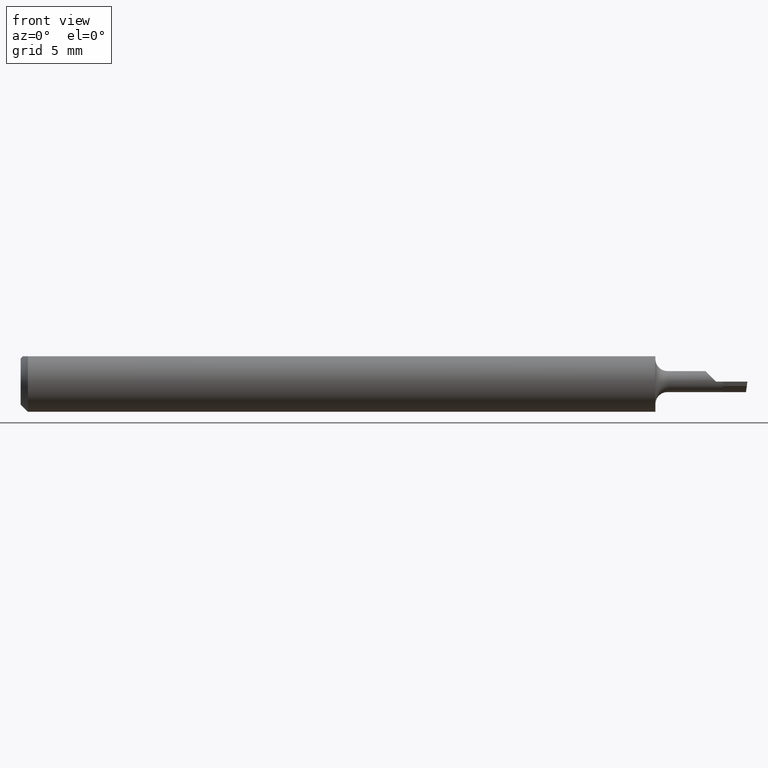
[diagram: clean part render]
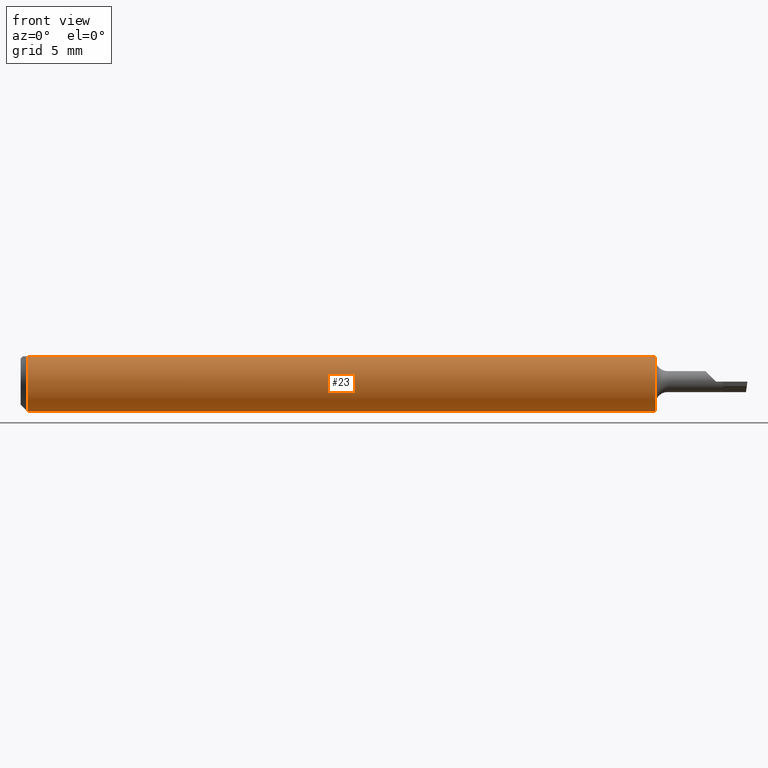
[diagram: same view with one face highlighted and labeled with its STEP entity id]
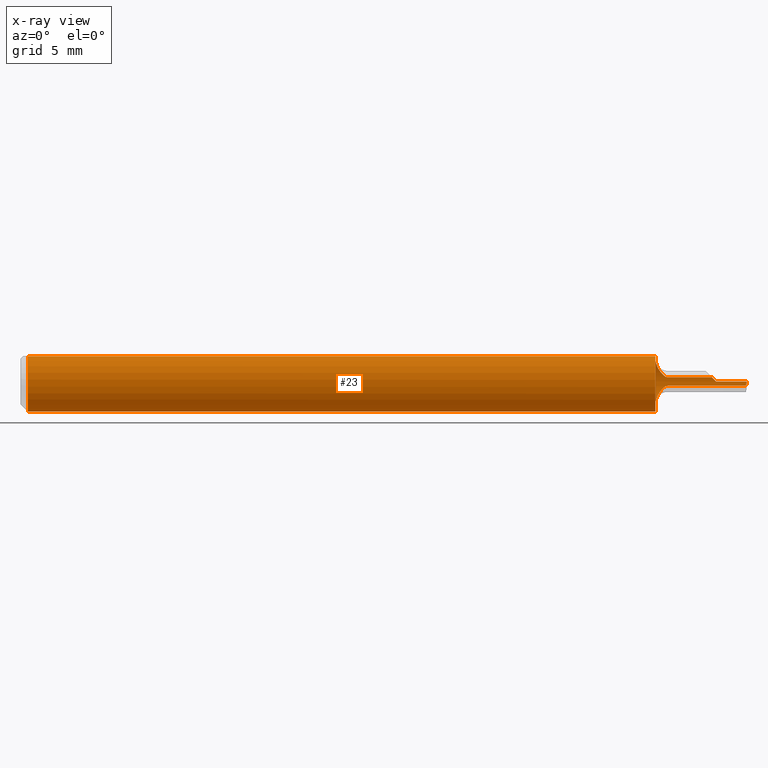
[diagram: x-ray of the same camera — body ghosted, the highlighted face saturated]
A machine part, front view. The second image highlights one B-rep face of the part: STEP entity #23.
The next image is the same camera in x-ray: the body ghosted, the highlighted face saturated — about 0% of this face is hidden behind the body in this view.
In plain terms, the highlighted cylindrical surface (edge-blend (fillet) strip) has radius 1.5837 mm, axis along (-1, -0, -0).
Its self-contained STEP definition (entity closure, byte-faithful):
#1 = CIRCLE ( 'NONE', #220, 0.06235000000000000264 ) ;
#5 = CARTESIAN_POINT ( 'NONE',  ( 1.428995348212944494, 0.06213295572546700951, 0.006004651787055668641 ) ) ;
#11 = CARTESIAN_POINT ( 'NONE',  ( 1.310074194741583486, 0.04526839251566672911, -0.04310279966243768524 ) ) ;
#16 = CARTESIAN_POINT ( 'NONE',  ( 1.321164219611749013, 0.05951808255707899398, -0.01885829980402606298 ) ) ;
#17 = CARTESIAN_POINT ( 'NONE',  ( 1.318668118509243703, 0.05835572319906699723, 0.02229702727151929020 ) ) ;
#20 = CARTESIAN_POINT ( 'NONE',  ( 1.392500000000000071, 0.06169999999999997708, -0.008979560122856901014 ) ) ;
#22 = CYLINDRICAL_SURFACE ( 'NONE', #200, 0.06235000000000000264 ) ;
#23 = ADVANCED_FACE ( 'NONE', ( #72 ), #22, .T. ) ;
#25 = CARTESIAN_POINT ( 'NONE',  ( 1.312870761441107037, 0.05308346109616995934, -0.03297691048371721029 ) ) ;
#33 = CARTESIAN_POINT ( 'NONE',  ( 1.981042333644269815E-32, 0.06234999999999999570, 1.723822351771319809E-16 ) ) ;
#34 = DIRECTION ( 'NONE',  ( 1.000000000000000000, 0.000000000000000000, 0.000000000000000000 ) ) ;
#46 = DIRECTION ( 'NONE',  ( -1.000000000000000000, -0.000000000000000000, -0.000000000000000000 ) ) ;
#49 = EDGE_CURVE ( 'NONE', #519, #386, #185, .T. ) ;
#54 = AXIS2_PLACEMENT_3D ( 'NONE', #169, #60, #375 ) ;
#60 = DIRECTION ( 'NONE',  ( -1.000000000000000000, -0.000000000000000000, -0.000000000000000000 ) ) ;
#62 = CARTESIAN_POINT ( 'NONE',  ( 1.310141552243445640, 0.04851859531340434878, 0.04014048412325041393 ) ) ;
#68 = EDGE_CURVE ( 'NONE', #163, #537, #308, .T. ) ;
#69 = CARTESIAN_POINT ( 'NONE',  ( 1.321137345355671844, 0.05951103980767496332, 0.01888626235242490611 ) ) ;
#72 = FACE_OUTER_BOUND ( 'NONE', #454, .T. ) ;
#79 = DIRECTION ( 'NONE',  ( -1.000000000000000000, -0.000000000000000000, -0.000000000000000000 ) ) ;
#81 = EDGE_CURVE ( 'NONE', #250, #493, #1, .T. ) ;
#100 = VECTOR ( 'NONE', #46, 39.37007874015748143 ) ;
#101 = CARTESIAN_POINT ( 'NONE',  ( 1.310000000000000053, -0.03386738844380023788, 0.05235000000000000070 ) ) ;
#104 = ORIENTED_EDGE ( 'NONE', *, *, #178, .T. ) ;
#117 = VERTEX_POINT ( 'NONE', #309 ) ;
#121 = CARTESIAN_POINT ( 'NONE',  ( 1.310000000000000053, 0.000000000000000000, 0.000000000000000000 ) ) ;
#125 = ORIENTED_EDGE ( 'NONE', *, *, #507, .T. ) ;
#130 = CARTESIAN_POINT ( 'NONE',  ( 1.392500000000000071, 0.06169999999999997708, 0.008979560122856901014 ) ) ;
#135 = DIRECTION ( 'NONE',  ( -1.000000000000000000, -0.000000000000000000, -0.000000000000000000 ) ) ;
#149 = CARTESIAN_POINT ( 'NONE',  ( 0.01500000000000000465, 0.03386738844375223462, 0.05234999999999997988 ) ) ;
#162 = CARTESIAN_POINT ( 'NONE',  ( 1.310006460274302675, 0.04200000000015002843, -0.04608169376213723523 ) ) ;
#163 = VERTEX_POINT ( 'NONE', #679 ) ;
#169 = CARTESIAN_POINT ( 'NONE',  ( 0.01500000000000000465, 0.000000000000000000, 0.000000000000000000 ) ) ;
#170 = CARTESIAN_POINT ( 'NONE',  ( 1.314503367413919488, 0.05514048125192552718, -0.02935827858479103658 ) ) ;
#171 = CARTESIAN_POINT ( 'NONE',  ( 1.330731329014794184, 0.06154711322920821542, 0.01005805410694270499 ) ) ;
#178 = EDGE_CURVE ( 'NONE', #684, #117, #615, .T. ) ;
#179 = CARTESIAN_POINT ( 'NONE',  ( 1.309999999999991172, 0.04158309226468338143, -0.04645910121876678511 ) ) ;
#180 = CIRCLE ( 'NONE', #620, 0.06235000000000000264 ) ;
#182 = DIRECTION ( 'NONE',  ( 1.000000000000000000, 0.000000000000000000, 0.000000000000000000 ) ) ;
#185 =( BOUNDED_CURVE ( )  B_SPLINE_CURVE ( 3, ( #659, #544, #186, #394 ),
 .UNSPECIFIED., .F., .T. ) 
 B_SPLINE_CURVE_WITH_KNOTS ( ( 4, 4 ),
 ( 5.009623706381322705, 5.154144874936619658 ),
 .UNSPECIFIED. ) 
 CURVE ( )  GEOMETRIC_REPRESENTATION_ITEM ( )  RATIONAL_B_SPLINE_CURVE ( ( 1.000000000000000000, 0.9982602265499040950, 0.9982602265499040950, 1.000000000000000000 ) ) 
 REPRESENTATION_ITEM ( '' )  );
#186 = CARTESIAN_POINT ( 'NONE',  ( 1.497630533948310916, 0.06213295572546700257, -0.006004651787055691192 ) ) ;
#187 = DIRECTION ( 'NONE',  ( 0.000000000000000000, 0.000000000000000000, 1.000000000000000000 ) ) ;
#200 = AXIS2_PLACEMENT_3D ( 'NONE', #285, #79, #231 ) ;
#203 = CARTESIAN_POINT ( 'NONE',  ( 1.310000000000000053, 0.04137261904761901921, 0.04664578108618818580 ) ) ;
#214 = EDGE_CURVE ( 'NONE', #493, #163, #273, .T. ) ;
#217 = CARTESIAN_POINT ( 'NONE',  ( 1.435000000000000053, 0.06234999999999984999, 7.469896857675718968E-18 ) ) ;
#220 = AXIS2_PLACEMENT_3D ( 'NONE', #121, #303, #345 ) ;
#224 = CARTESIAN_POINT ( 'NONE',  ( 1.325584872132278935, 0.06074967455721212717, 0.01413090964346032201 ) ) ;
#228 = CARTESIAN_POINT ( 'NONE',  ( 1.310670077248454524, 0.04815584287052730034, -0.03982895007941800181 ) ) ;
#229 = ORIENTED_EDGE ( 'NONE', *, *, #288, .T. ) ;
#231 = DIRECTION ( 'NONE',  ( 0.000000000000000000, 0.000000000000000000, 1.000000000000000000 ) ) ;
#236 = EDGE_CURVE ( 'NONE', #371, #250, #292, .T. ) ;
#237 = VERTEX_POINT ( 'NONE', #429 ) ;
#250 = VERTEX_POINT ( 'NONE', #270 ) ;
#270 = CARTESIAN_POINT ( 'NONE',  ( 1.310000000000000053, 0.03386738844375224156, 0.05235000000000000070 ) ) ;
#273 = B_SPLINE_CURVE_WITH_KNOTS ( 'NONE', 3,
 ( #203, #412, #348, #624 ),
 .UNSPECIFIED., .F., .F.,
 ( 4, 4 ),
 ( 4.582666268724743526E-07, 2.170104865268368278E-05 ),
 .UNSPECIFIED. ) ;
#274 = VERTEX_POINT ( 'NONE', #581 ) ;
#277 = CARTESIAN_POINT ( 'NONE',  ( 1.312421881751719255, 0.05353913003532599635, 0.03288138494637243836 ) ) ;
#278 = VECTOR ( 'NONE', #538, 39.37007874015748143 ) ;
#284 = CARTESIAN_POINT ( 'NONE',  ( 1.325565359643935626, 0.06074446073968786663, -0.01415138756931525257 ) ) ;
#285 = CARTESIAN_POINT ( 'NONE',  ( 0.000000000000000000, 0.000000000000000000, 0.000000000000000000 ) ) ;
#288 = EDGE_CURVE ( 'NONE', #386, #619, #482, .T. ) ;
#289 = CARTESIAN_POINT ( 'NONE',  ( 0.01500000000000000465, 0.000000000000000000, -0.06235000000000000264 ) ) ;
#292 = LINE ( 'NONE', #298, #522 ) ;
#294 = EDGE_CURVE ( 'NONE', #410, #117, #662, .T. ) ;
#298 = CARTESIAN_POINT ( 'NONE',  ( 0.000000000000000000, 0.03386738844375223462, 0.05234999999999997988 ) ) ;
#300 = VERTEX_POINT ( 'NONE', #217 ) ;
#302 = AXIS2_PLACEMENT_3D ( 'NONE', #451, #657, #187 ) ;
#303 = DIRECTION ( 'NONE',  ( -1.000000000000000000, -0.000000000000000000, -0.000000000000000000 ) ) ;
#308 = B_SPLINE_CURVE_WITH_KNOTS ( 'NONE', 3,
 ( #539, #62, #277, #17, #69, #224, #430, #171, #382, #594 ),
 .UNSPECIFIED., .F., .F.,
 ( 4, 2, 2, 2, 4 ),
 ( 2.170104865268368278E-05, 0.0006888475183558680215, 0.001022420753207455187, 0.001189207370633255708, 0.001355993988059056229 ),
 .UNSPECIFIED. ) ;
#309 = CARTESIAN_POINT ( 'NONE',  ( 0.01500000000000185039, -0.03386738844380016850, 0.05235000000000000070 ) ) ;
#316 = ORIENTED_EDGE ( 'NONE', *, *, #236, .T. ) ;
#317 = ORIENTED_EDGE ( 'NONE', *, *, #554, .T. ) ;
#320 = ORIENTED_EDGE ( 'NONE', *, *, #446, .F. ) ;
#327 =( BOUNDED_CURVE ( )  B_SPLINE_CURVE ( 3, ( #465, #5, #421, #635 ),
 .UNSPECIFIED., .F., .T. ) 
 B_SPLINE_CURVE_WITH_KNOTS ( ( 4, 4 ),
 ( 1.426275158239600271, 1.570796326794896558 ),
 .UNSPECIFIED. ) 
 CURVE ( )  GEOMETRIC_REPRESENTATION_ITEM ( )  RATIONAL_B_SPLINE_CURVE ( ( 1.000000000000000000, 0.9982602265499040950, 0.9982602265499040950, 1.000000000000000000 ) ) 
 REPRESENTATION_ITEM ( '' )  );
#328 = CARTESIAN_POINT ( 'NONE',  ( 1.327152351167834921, 0.06107065959994131127, -0.01263339011355613974 ) ) ;
#345 = DIRECTION ( 'NONE',  ( 0.000000000000000000, 0.000000000000000000, 1.000000000000000000 ) ) ;
#346 = DIRECTION ( 'NONE',  ( 0.000000000000000000, 0.000000000000000000, 1.000000000000000000 ) ) ;
#348 = CARTESIAN_POINT ( 'NONE',  ( 1.310002158776226500, 0.04179243973303146953, 0.04627086934374565613 ) ) ;
#370 = CARTESIAN_POINT ( 'NONE',  ( 1.318638811239069231, 0.05833681936465645590, -0.02234271023335333492 ) ) ;
#371 = VERTEX_POINT ( 'NONE', #149 ) ;
#375 = DIRECTION ( 'NONE',  ( 0.000000000000000000, 0.000000000000000000, 1.000000000000000000 ) ) ;
#382 = CARTESIAN_POINT ( 'NONE',  ( 1.332762534547911715, 0.06169999999999992851, 0.008979560122857352042 ) ) ;
#386 = VERTEX_POINT ( 'NONE', #524 ) ;
#388 = CARTESIAN_POINT ( 'NONE',  ( 1.498307515265092205, 0.06234999999999984999, 4.252919012001033187E-19 ) ) ;
#389 = EDGE_CURVE ( 'NONE', #274, #300, #327, .T. ) ;
#393 = CARTESIAN_POINT ( 'NONE',  ( 1.310006460274302675, 0.04200000000015002843, -0.04608169376213723523 ) ) ;
#394 = CARTESIAN_POINT ( 'NONE',  ( 1.497306498500703631, 0.06169999999999997708, -0.008979560122856901014 ) ) ;
#398 = CARTESIAN_POINT ( 'NONE',  ( 1.310002154187601242, 0.04179221831807067300, -0.04627107114684034933 ) ) ;
#402 = LINE ( 'NONE', #33, #627 ) ;
#410 = VERTEX_POINT ( 'NONE', #289 ) ;
#412 = CARTESIAN_POINT ( 'NONE',  ( 1.310000000000000053, 0.04158331714061498652, 0.04645890176435896191 ) ) ;
#416 = EDGE_CURVE ( 'NONE', #300, #519, #402, .T. ) ;
#420 = ORIENTED_EDGE ( 'NONE', *, *, #214, .T. ) ;
#421 = CARTESIAN_POINT ( 'NONE',  ( 1.431993751462930842, 0.06235000000000000958, 0.003006248537069724624 ) ) ;
#422 = ORIENTED_EDGE ( 'NONE', *, *, #68, .T. ) ;
#424 = CARTESIAN_POINT ( 'NONE',  ( 1.334999999999999742, 0.06169999999999989382, -0.008979560122857110915 ) ) ;
#426 = ORIENTED_EDGE ( 'NONE', *, *, #49, .T. ) ;
#429 = CARTESIAN_POINT ( 'NONE',  ( 1.310000000000000053, 0.04137261904761901921, -0.04664578108618818580 ) ) ;
#430 = CARTESIAN_POINT ( 'NONE',  ( 1.327175290836501542, 0.06107452517360630051, 0.01261403876978733560 ) ) ;
#446 = EDGE_CURVE ( 'NONE', #371, #410, #597, .T. ) ;
#451 = CARTESIAN_POINT ( 'NONE',  ( 0.01500000000000000465, 0.000000000000000000, 0.000000000000000000 ) ) ;
#454 = EDGE_LOOP ( 'NONE', ( #600, #426, #229, #317, #125, #630, #104, #556, #320, #316, #584, #420, #422, #475, #625 ) ) ;
#460 = VERTEX_POINT ( 'NONE', #393 ) ;
#465 = CARTESIAN_POINT ( 'NONE',  ( 1.426020439877143220, 0.06169999999999999790, 0.008979560122856859380 ) ) ;
#471 = VECTOR ( 'NONE', #182, 39.37007874015748143 ) ;
#475 = ORIENTED_EDGE ( 'NONE', *, *, #484, .T. ) ;
#482 = LINE ( 'NONE', #20, #278 ) ;
#483 = CARTESIAN_POINT ( 'NONE',  ( 1.332753018252280430, 0.06169999999999996321, -0.008979560122857142140 ) ) ;
#484 = EDGE_CURVE ( 'NONE', #537, #274, #604, .T. ) ;
#493 = VERTEX_POINT ( 'NONE', #551 ) ;
#496 = B_SPLINE_CURVE_WITH_KNOTS ( 'NONE', 3,
 ( #424, #483, #640, #328, #284, #16, #370, #170, #25, #228, #11, #162 ),
 .UNSPECIFIED., .F., .F.,
 ( 4, 2, 2, 2, 2, 4 ),
 ( 1.956466010703177504E-07, 0.0001677086840062952627, 0.0003352217214115201698, 0.0006702477962219700923, 0.001005273871032420123, 0.001340299945842869612 ),
 .UNSPECIFIED. ) ;
#507 = EDGE_CURVE ( 'NONE', #460, #237, #585, .T. ) ;
#511 = EDGE_CURVE ( 'NONE', #237, #684, #180, .T. ) ;
#519 = VERTEX_POINT ( 'NONE', #388 ) ;
#522 = VECTOR ( 'NONE', #34, 39.37007874015748143 ) ;
#524 = CARTESIAN_POINT ( 'NONE',  ( 1.497306498500703631, 0.06169999999999997708, -0.008979560122856901014 ) ) ;
#537 = VERTEX_POINT ( 'NONE', #617 ) ;
#538 = DIRECTION ( 'NONE',  ( -1.000000000000000000, -0.000000000000000000, -0.000000000000000000 ) ) ;
#539 = CARTESIAN_POINT ( 'NONE',  ( 1.310006460274299567, 0.04199999999999769890, 0.04608169376227606862 ) ) ;
#544 = CARTESIAN_POINT ( 'NONE',  ( 1.497964787728959912, 0.06235000000000000264, -0.003006248537069734598 ) ) ;
#550 = CARTESIAN_POINT ( 'NONE',  ( 1.334999999999999742, 0.06169999999999989382, -0.008979560122857110915 ) ) ;
#551 = CARTESIAN_POINT ( 'NONE',  ( 1.310000000000000053, 0.04137261904761901921, 0.04664578108618818580 ) ) ;
#553 = CARTESIAN_POINT ( 'NONE',  ( 1.310000000000000053, 0.000000000000000000, 0.000000000000000000 ) ) ;
#554 = EDGE_CURVE ( 'NONE', #619, #460, #496, .T. ) ;
#555 = CARTESIAN_POINT ( 'NONE',  ( 0.000000000000000000, -0.03386738844375222768, 0.05234999999999997988 ) ) ;
#556 = ORIENTED_EDGE ( 'NONE', *, *, #294, .F. ) ;
#557 = DIRECTION ( 'NONE',  ( 1.000000000000000000, 0.000000000000000000, 0.000000000000000000 ) ) ;
#581 = CARTESIAN_POINT ( 'NONE',  ( 1.426020439877143220, 0.06169999999999999790, 0.008979560122856859380 ) ) ;
#584 = ORIENTED_EDGE ( 'NONE', *, *, #81, .T. ) ;
#585 = B_SPLINE_CURVE_WITH_KNOTS ( 'NONE', 3,
 ( #660, #398, #179, #610 ),
 .UNSPECIFIED., .F., .F.,
 ( 4, 4 ),
 ( 0.001340299945842869612, 0.001361598575378357477 ),
 .UNSPECIFIED. ) ;
#594 = CARTESIAN_POINT ( 'NONE',  ( 1.334999999999999742, 0.06169999999999822848, 0.008979560122860748630 ) ) ;
#597 = CIRCLE ( 'NONE', #302, 0.06235000000000000264 ) ;
#600 = ORIENTED_EDGE ( 'NONE', *, *, #416, .T. ) ;
#604 = LINE ( 'NONE', #130, #471 ) ;
#610 = CARTESIAN_POINT ( 'NONE',  ( 1.310000000000000053, 0.04137261904761901921, -0.04664578108618818580 ) ) ;
#615 = LINE ( 'NONE', #555, #100 ) ;
#617 = CARTESIAN_POINT ( 'NONE',  ( 1.334999999999999742, 0.06169999999999822848, 0.008979560122860748630 ) ) ;
#619 = VERTEX_POINT ( 'NONE', #550 ) ;
#620 = AXIS2_PLACEMENT_3D ( 'NONE', #553, #135, #346 ) ;
#624 = CARTESIAN_POINT ( 'NONE',  ( 1.310006460274299567, 0.04199999999999769890, 0.04608169376227606862 ) ) ;
#625 = ORIENTED_EDGE ( 'NONE', *, *, #389, .T. ) ;
#627 = VECTOR ( 'NONE', #557, 39.37007874015748143 ) ;
#630 = ORIENTED_EDGE ( 'NONE', *, *, #511, .T. ) ;
#635 = CARTESIAN_POINT ( 'NONE',  ( 1.435000000000000053, 0.06234999999999984999, 7.469896857675718968E-18 ) ) ;
#640 = CARTESIAN_POINT ( 'NONE',  ( 1.330717554203211472, 0.06154609117734800156, -0.01006512148574321107 ) ) ;
#657 = DIRECTION ( 'NONE',  ( -1.000000000000000000, -0.000000000000000000, -0.000000000000000000 ) ) ;
#659 = CARTESIAN_POINT ( 'NONE',  ( 1.498307515265092205, 0.06234999999999984999, 4.252919012001033187E-19 ) ) ;
#660 = CARTESIAN_POINT ( 'NONE',  ( 1.310006460274302675, 0.04200000000015002843, -0.04608169376213723523 ) ) ;
#662 = CIRCLE ( 'NONE', #54, 0.06235000000000000264 ) ;
#679 = CARTESIAN_POINT ( 'NONE',  ( 1.310006460274299567, 0.04199999999999769890, 0.04608169376227606862 ) ) ;
#684 = VERTEX_POINT ( 'NONE', #101 ) ;